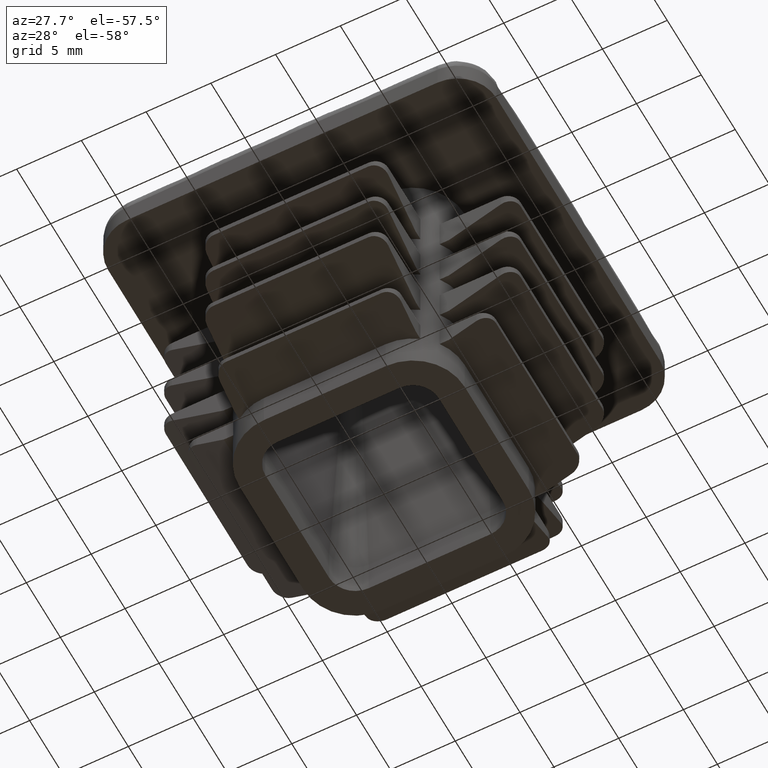
[diagram: clean part render]
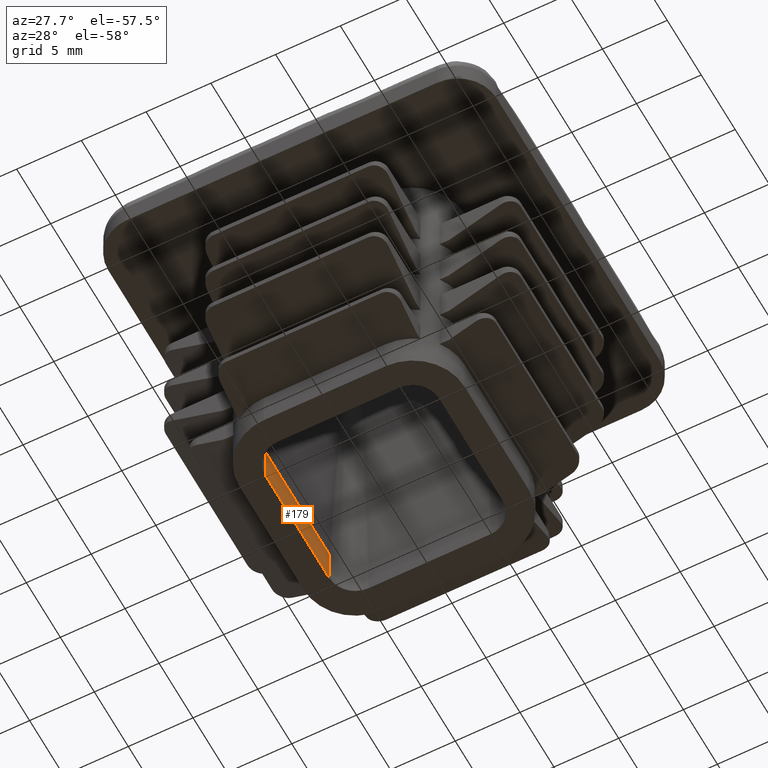
[diagram: same view with one face highlighted and labeled with its STEP entity id]
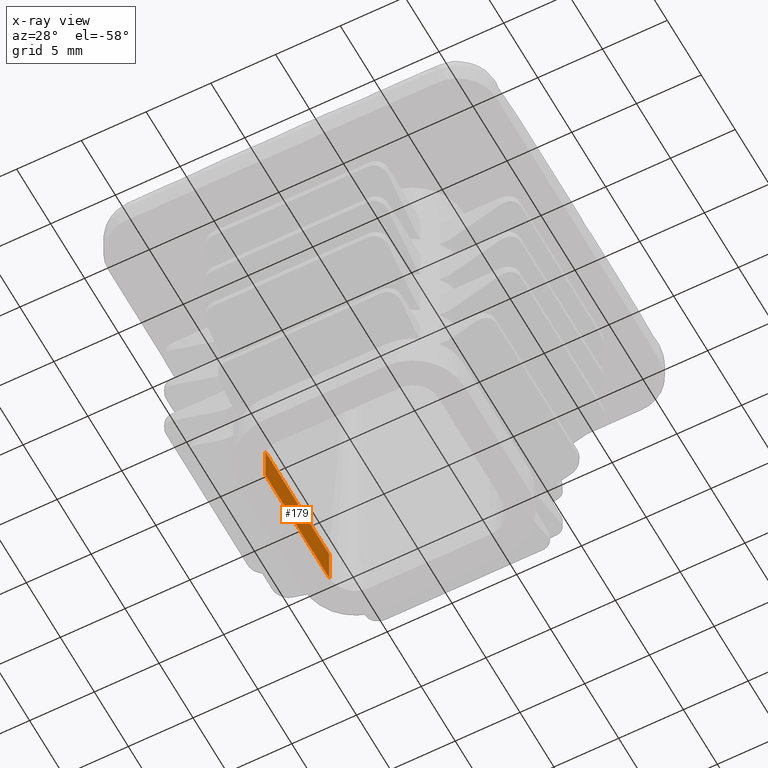
[diagram: x-ray of the same camera — body ghosted, the highlighted face saturated]
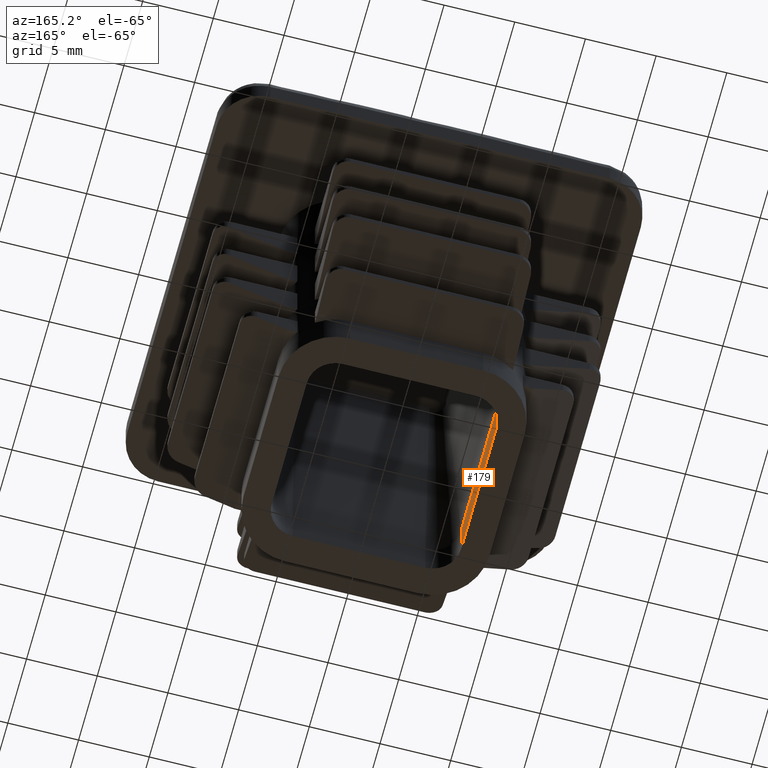
[diagram: same view with one face highlighted and labeled with its STEP entity id]
A machine part, auxiliary view. The second image highlights one B-rep face of the part: STEP entity #179.
The next image is the same camera in x-ray: the body ghosted, the highlighted face saturated — about 0% of this face is hidden behind the body in this view.
A second angle (auxiliary view) of the same face is appended — the face is thin or edge-on in the first view.
In plain terms, the highlighted planar face has unit normal (1, 0, 0).
Its self-contained STEP definition (entity closure, byte-faithful):
#179 = ADVANCED_FACE( '', ( #567 ), #568, .T. );
#567 = FACE_OUTER_BOUND( '', #2082, .T. );
#568 = PLANE( '', #2083 );
#2082 = EDGE_LOOP( '', ( #4130, #4131, #4132, #4133 ) );
#2083 = AXIS2_PLACEMENT_3D( '', #4134, #4135, #4136 );
#4130 = ORIENTED_EDGE( '', *, *, #5751, .T. );
#4131 = ORIENTED_EDGE( '', *, *, #5743, .F. );
#4132 = ORIENTED_EDGE( '', *, *, #5765, .F. );
#4133 = ORIENTED_EDGE( '', *, *, #5766, .T. );
#4134 = CARTESIAN_POINT( '', ( -6.70000000000000, 4.70000000000000, 3.00000000000000 ) );
#4135 = DIRECTION( '', ( 1.00000000000000, 0.000000000000000, 0.000000000000000 ) );
#4136 = DIRECTION( '', ( 0.000000000000000, 1.00000000000000, 0.000000000000000 ) );
#5743 = EDGE_CURVE( '', #6712, #6713, #6714, .T. );
#5751 = EDGE_CURVE( '', #6728, #6713, #6729, .T. );
#5765 = EDGE_CURVE( '', #6748, #6712, #6750, .T. );
#5766 = EDGE_CURVE( '', #6748, #6728, #6751, .T. );
#6712 = VERTEX_POINT( '', #9250 );
#6713 = VERTEX_POINT( '', #9251 );
#6714 = LINE( '', #9252, #9253 );
#6728 = VERTEX_POINT( '', #9270 );
#6729 = LINE( '', #9271, #9272 );
#6748 = VERTEX_POINT( '', #9300 );
#6750 = LINE( '', #9302, #9303 );
#6751 = LINE( '', #9304, #9305 );
#9250 = CARTESIAN_POINT( '', ( -6.70000000000000, 4.70000000000000, 0.000000000000000 ) );
#9251 = CARTESIAN_POINT( '', ( -6.70000000000000, -4.70000000000000, 0.000000000000000 ) );
#9252 = CARTESIAN_POINT( '', ( -6.70000000000000, 4.70000000000000, 0.000000000000000 ) );
#9253 = VECTOR( '', #10804, 1000.00000000000 );
#9270 = CARTESIAN_POINT( '', ( -6.70000000000000, -4.70000000000000, 3.00000000000000 ) );
#9271 = CARTESIAN_POINT( '', ( -6.70000000000000, -4.70000000000000, 3.00000000000000 ) );
#9272 = VECTOR( '', #10820, 1000.00000000000 );
#9300 = CARTESIAN_POINT( '', ( -6.70000000000000, 4.70000000000000, 3.00000000000000 ) );
#9302 = CARTESIAN_POINT( '', ( -6.70000000000000, 4.70000000000000, 3.00000000000000 ) );
#9303 = VECTOR( '', #10842, 1000.00000000000 );
#9304 = CARTESIAN_POINT( '', ( -6.70000000000000, 4.70000000000000, 3.00000000000000 ) );
#9305 = VECTOR( '', #10843, 1000.00000000000 );
#10804 = DIRECTION( '', ( 0.000000000000000, -1.00000000000000, 0.000000000000000 ) );
#10820 = DIRECTION( '', ( 0.000000000000000, 0.000000000000000, -1.00000000000000 ) );
#10842 = DIRECTION( '', ( 0.000000000000000, 0.000000000000000, -1.00000000000000 ) );
#10843 = DIRECTION( '', ( 0.000000000000000, -1.00000000000000, 0.000000000000000 ) );